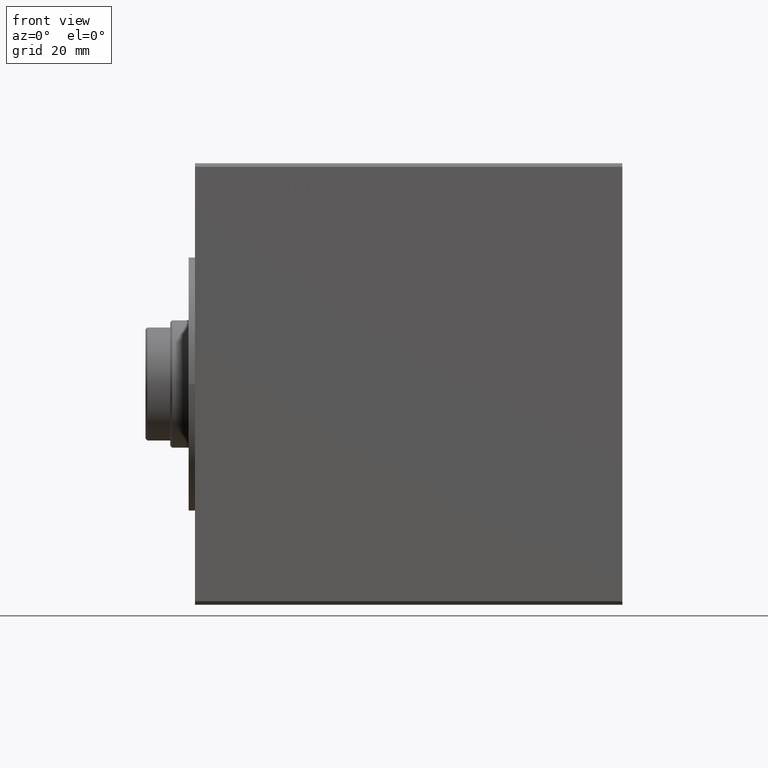
[diagram: clean part render]
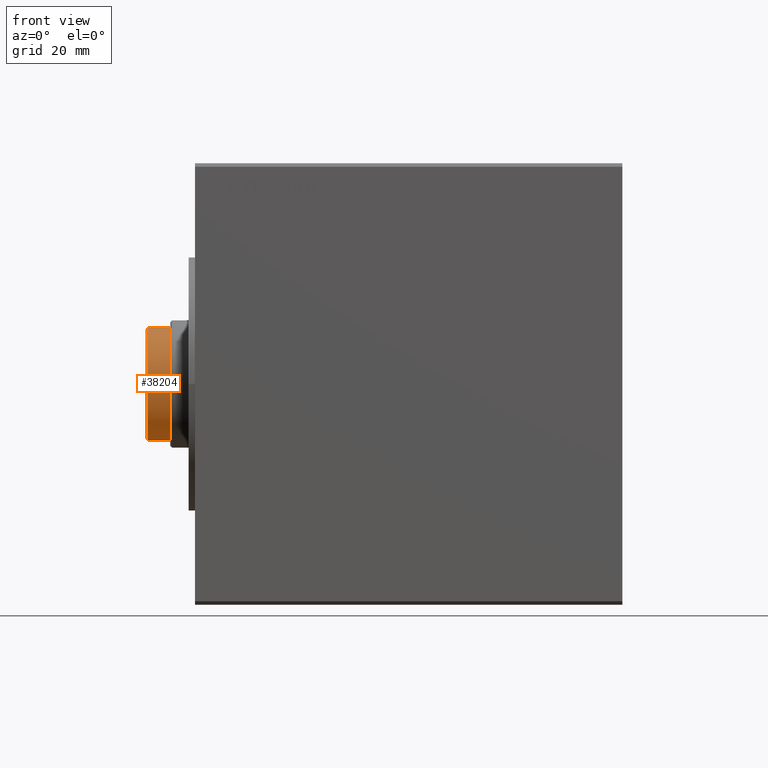
[diagram: same view with one face highlighted and labeled with its STEP entity id]
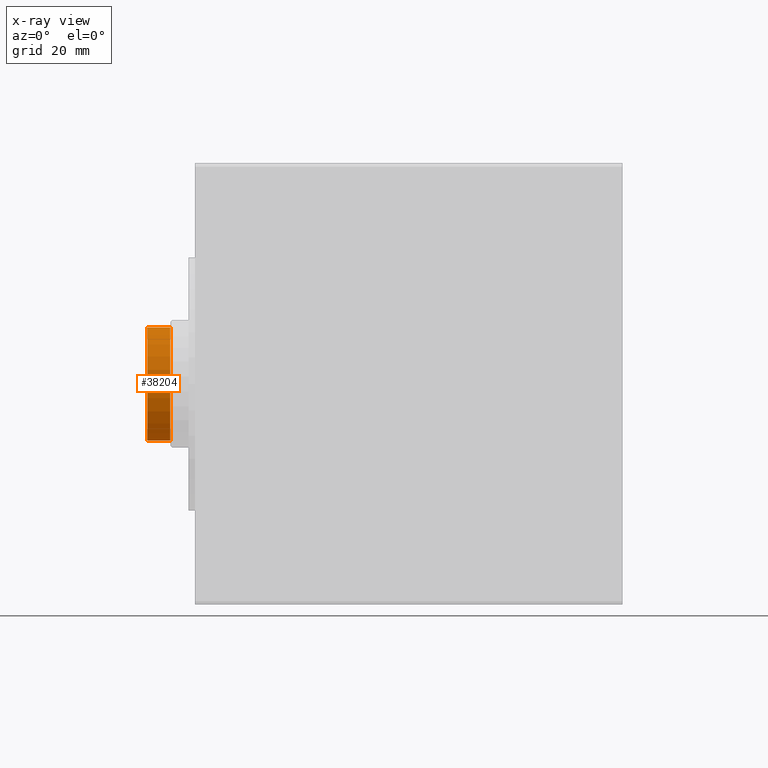
[diagram: x-ray of the same camera — body ghosted, the highlighted face saturated]
A machine part, front view. The second image highlights one B-rep face of the part: STEP entity #38204.
The next image is the same camera in x-ray: the body ghosted, the highlighted face saturated — about 0% of this face is hidden behind the body in this view.
In plain terms, the highlighted cylindrical surface (partial cylindrical patch) has radius 17.5 mm, axis along (1, -0, -0).
Its self-contained STEP definition (entity closure, byte-faithful):
#2453 = LINE ( 'NONE', #40039, #16730 ) ;
#2917 = CARTESIAN_POINT ( 'NONE',  ( -15.99999999999999289, -7.088723439378888713, 107.1999999999999886 ) ) ;
#5020 = DIRECTION ( 'NONE',  ( -0.000000000000000000, -0.000000000000000000, -1.000000000000000000 ) ) ;
#6241 = EDGE_CURVE ( 'NONE', #9573, #6998, #23294, .T. ) ;
#6998 = VERTEX_POINT ( 'NONE', #2917 ) ;
#7123 = EDGE_CURVE ( 'NONE', #6998, #34876, #27876, .T. ) ;
#8347 = CARTESIAN_POINT ( 'NONE',  ( 0.000000000000000000, 0.000000000000000000, 113.6999999999999886 ) ) ;
#9573 = VERTEX_POINT ( 'NONE', #18948 ) ;
#10753 = EDGE_CURVE ( 'NONE', #35925, #34876, #2453, .T. ) ;
#11018 = ORIENTED_EDGE ( 'NONE', *, *, #7123, .T. ) ;
#11117 = CARTESIAN_POINT ( 'NONE',  ( 16.00000000000000000, -7.088723439378881608, 113.6999999999999886 ) ) ;
#12638 = CARTESIAN_POINT ( 'NONE',  ( -16.00000000000000000, -7.088723439378881608, 114.2000000000000028 ) ) ;
#16730 = VECTOR ( 'NONE', #26009, 1000.000000000000000 ) ;
#18230 = DIRECTION ( 'NONE',  ( 1.000000000000000000, 0.000000000000000000, 0.000000000000000000 ) ) ;
#18948 = CARTESIAN_POINT ( 'NONE',  ( -16.00000000000000000, -7.088723439378881608, 113.6999999999999886 ) ) ;
#21884 = DIRECTION ( 'NONE',  ( 1.000000000000000000, 0.000000000000000000, 0.000000000000000000 ) ) ;
#21907 = CARTESIAN_POINT ( 'NONE',  ( 0.000000000000000000, 0.000000000000000000, 114.2000000000000028 ) ) ;
#22417 = DIRECTION ( 'NONE',  ( -0.000000000000000000, -0.000000000000000000, -1.000000000000000000 ) ) ;
#22951 = AXIS2_PLACEMENT_3D ( 'NONE', #8347, #41713, #21884 ) ;
#23294 = LINE ( 'NONE', #12638, #29993 ) ;
#25239 = CYLINDRICAL_SURFACE ( 'NONE', #43592, 17.49999999999998934 ) ;
#25352 = ORIENTED_EDGE ( 'NONE', *, *, #38865, .T. ) ;
#25884 = FACE_OUTER_BOUND ( 'NONE', #28860, .T. ) ;
#26009 = DIRECTION ( 'NONE',  ( -0.000000000000000000, -0.000000000000000000, -1.000000000000000000 ) ) ;
#26209 = ORIENTED_EDGE ( 'NONE', *, *, #6241, .T. ) ;
#26987 = ORIENTED_EDGE ( 'NONE', *, *, #10753, .F. ) ;
#27876 = CIRCLE ( 'NONE', #28629, 17.49999999999998934 ) ;
#28629 = AXIS2_PLACEMENT_3D ( 'NONE', #28662, #32007, #18230 ) ;
#28662 = CARTESIAN_POINT ( 'NONE',  ( 0.000000000000000000, 0.000000000000000000, 107.1999999999999886 ) ) ;
#28860 = EDGE_LOOP ( 'NONE', ( #26987, #25352, #26209, #11018 ) ) ;
#29993 = VECTOR ( 'NONE', #22417, 1000.000000000000000 ) ;
#31918 = DIRECTION ( 'NONE',  ( -1.000000000000000000, 0.000000000000000000, 0.000000000000000000 ) ) ;
#32007 = DIRECTION ( 'NONE',  ( 0.000000000000000000, 0.000000000000000000, 1.000000000000000000 ) ) ;
#34876 = VERTEX_POINT ( 'NONE', #36308 ) ;
#35925 = VERTEX_POINT ( 'NONE', #11117 ) ;
#36308 = CARTESIAN_POINT ( 'NONE',  ( 15.99999999999999289, -7.088723439378888713, 107.1999999999999886 ) ) ;
#38204 = ADVANCED_FACE ( 'NONE', ( #25884 ), #25239, .T. ) ;
#38865 = EDGE_CURVE ( 'NONE', #35925, #9573, #40728, .T. ) ;
#40039 = CARTESIAN_POINT ( 'NONE',  ( 16.00000000000000000, -7.088723439378881608, 114.2000000000000028 ) ) ;
#40728 = CIRCLE ( 'NONE', #22951, 17.49999999999998934 ) ;
#41713 = DIRECTION ( 'NONE',  ( 0.000000000000000000, 0.000000000000000000, -1.000000000000000000 ) ) ;
#43592 = AXIS2_PLACEMENT_3D ( 'NONE', #21907, #5020, #31918 ) ;